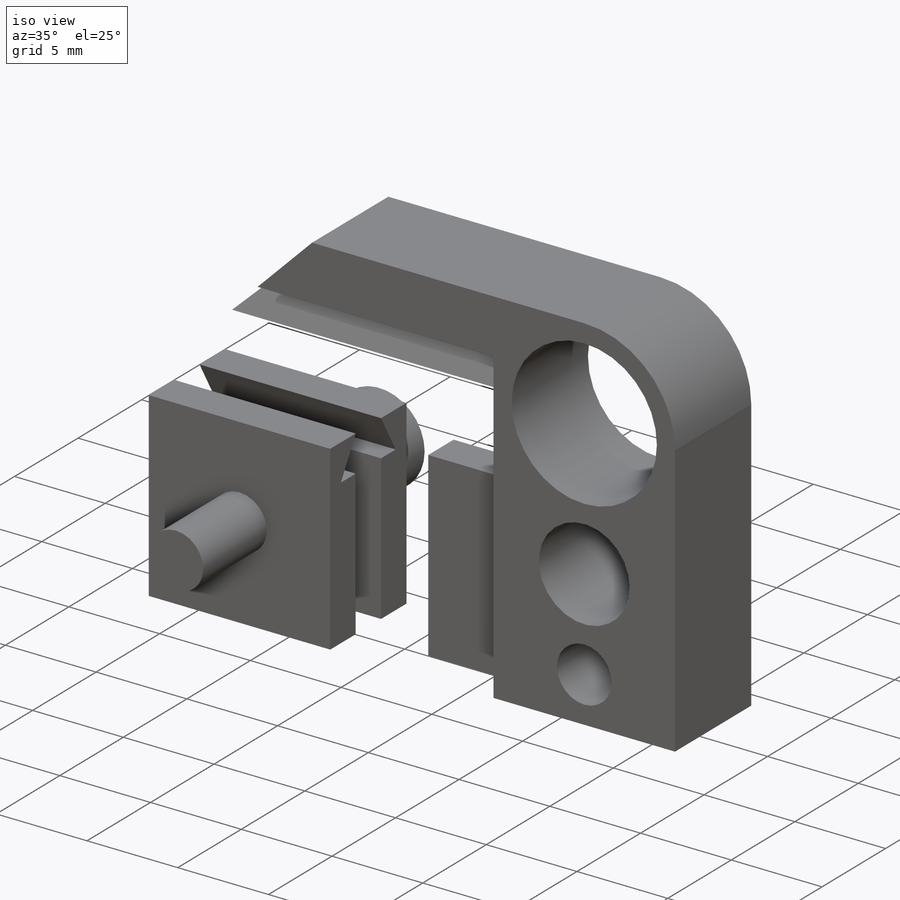
[diagram: iso view]
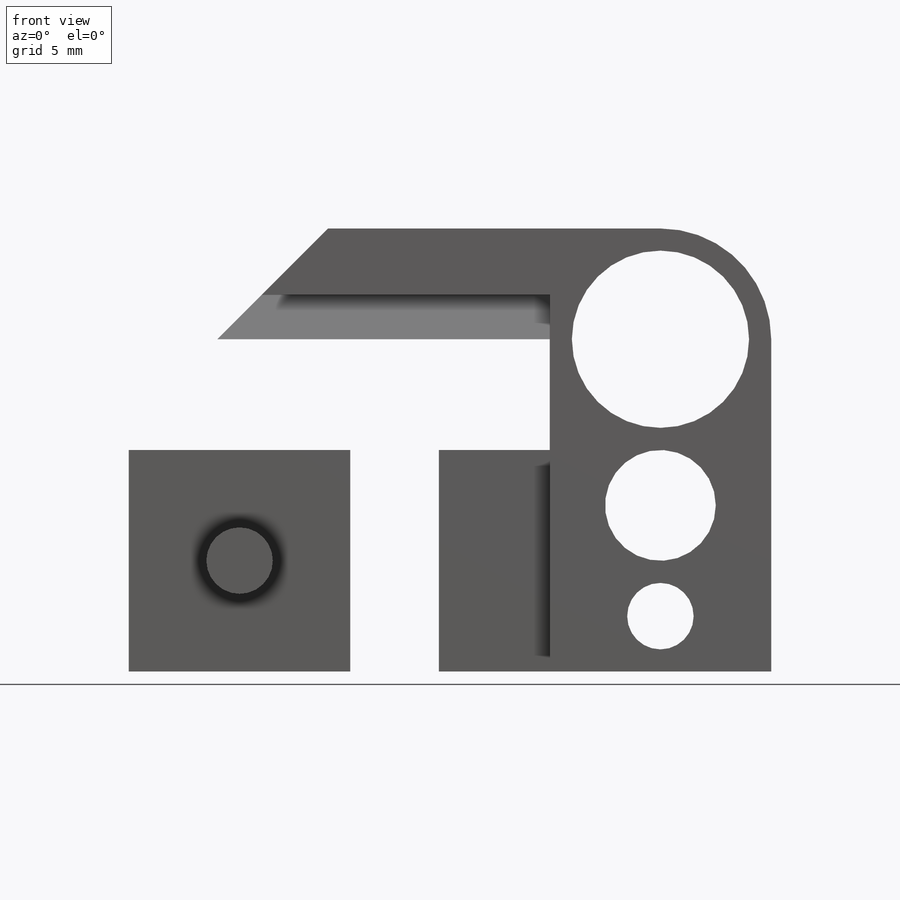
[diagram: front view]
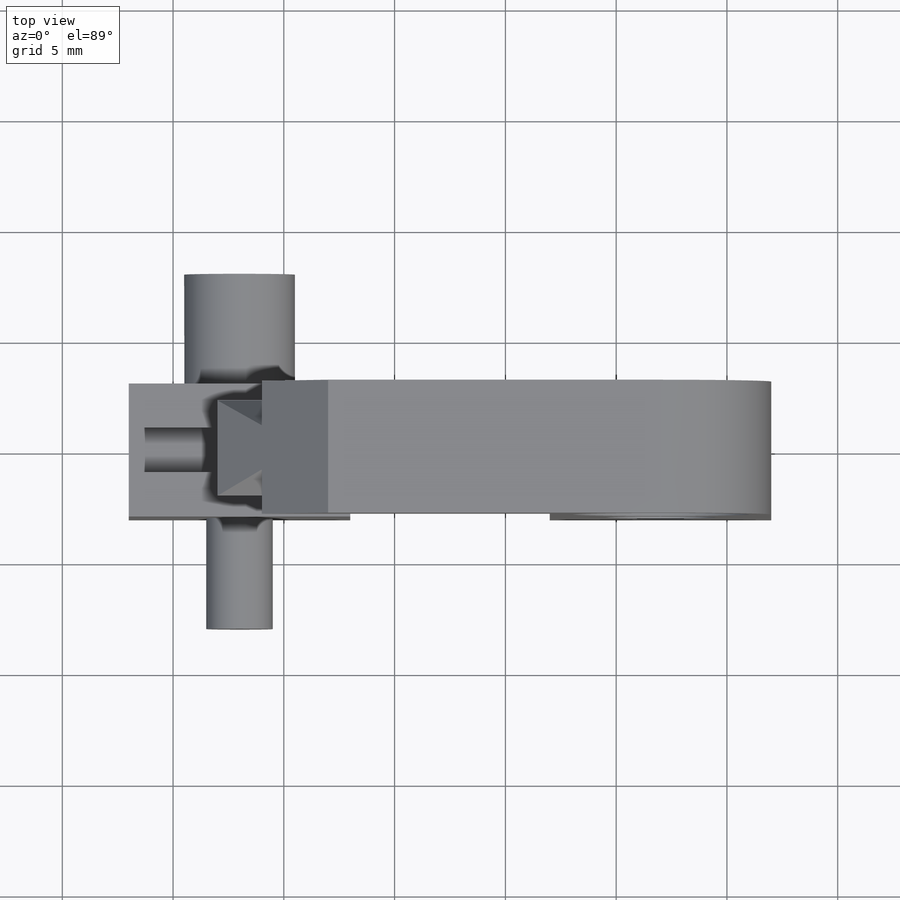
[diagram: top view]
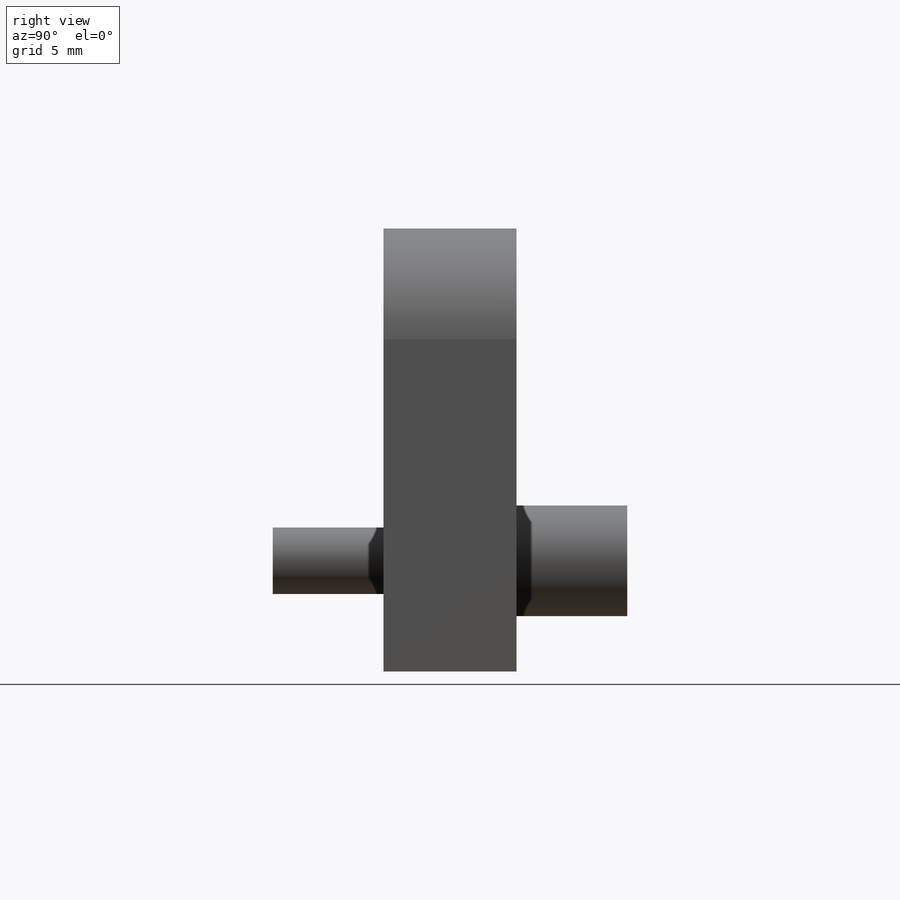
[diagram: right view]
SOLIDWORKS PART (.sldprt)
format: sldprt  version: not decoded by parser v0  size: 347,136 bytes
history: native  units: mm
features: sketch x8, extrude x5, plane x3, cut_extrude x3, material x1, fillet x1, chamfer x1 (+9 scaffold rows collapsed)
feature tree (31):
  scaffold x9  (default folders/planes/origin — collapsed)
  material  "Matériau <non spécifié>"
  plane  "Plan de face"
  plane  "Plan de dessus"
  plane  "Plan de droite"
  sketch  "Esquisse1"  dims[c1.D1=2.0mm c1.D2=1.0mm c1.D3=2.0mm c1.D4=1.0mm c1.D5=5.0mm c1.D6=5.0mm c1.D7=10.0mm c1.D8=2.0mm c1.D9=2.0mm c1.D10=~8.676964mm c2.D3=2.0mm c2.D4=5.0mm c2.D10=5.0mm c2.D11=2.0mm c2.D12=2.0mm c2.D13=6.0mm c2.D14=10.0mm c2.D15=2.0mm c2.D16=1.0mm]
  extrude  "Boss.-Extru.1"  Depth=10mm
  sketch  "Esquisse2"  dims[D1=6.0mm D2=10.0mm]
  extrude  "Boss.-Extru.2"  Depth=10mm
  sketch  "Esquisse4"  dims[c1.D1=~2.11727mm c1.D2=6.0mm c2.D1=5.0mm]
  extrude  "Boss.-Extru.3"  Depth=15mm
  sketch  "Esquisse5"  dims[c1.D1=~4.642453mm c1.D7=3.0mm c1.D8=5.0mm c1.D9=8.0mm c2.D1=5.0mm c2.D2=~5.002205mm c2.D3=~5.002205mm c2.D4=2.5mm c2.D5=5.0mm c2.D6=7.5mm]
  cut_extrude  "Enlèv. mat.-Extru.1"  Depth=15mm
  sketch  "Esquisse6"  dims[c1.D1=~3.777226mm c1.D3=3.0mm c2.D1=5.0mm c2.D2=5.0mm]
  extrude  "Boss.-Extru.4"  Depth=5mm
  sketch  "Esquisse7"  dims[c1.D1=~3.265071mm c1.D3=5.0mm c2.D1=5.0mm c2.D2=5.0mm]
  extrude  "Boss.-Extru.5"  Depth=5mm
  sketch  "Esquisse8"  dims[c1.D1=~2.086015mm c2.D1=120.0deg c2.D2=~2.537024mm c3.D2=120.0deg c3.D3=2.0mm c3.D4=4.0mm c3.D5=2.0mm c3.D6=~1.732051mm c4.D4=2.0mm]
  cut_extrude  "Enlèv. mat.-Extru.2"  Depth=10mm
  sketch  "Esquisse9"  dims[c1.D1=~1.580066mm c2.D1=60.0deg c2.D2=1.5mm c2.D3=~8.262334mm c2.D4=~2.383509mm c3.D3=2.0mm c3.D4=~10.577479mm c3.D2=1.0mm]
  cut_extrude  "Enlèv. mat.-Extru.3"  Depth=15mm
  fillet  "Congé1"  Radius=5mm
  chamfer  "Chanfrein1"  Distance=5mm Angle=45deg
decode coverage: 18 of 18 modeling features carry decoded parameters
note: ~ marks probable driven/reference dimensions
note: suppression state not decoded; provenance and decode notes live in map.json
